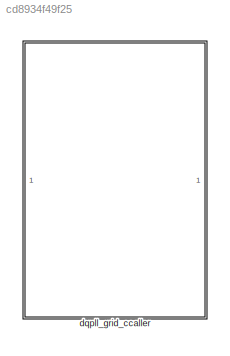
MODEL slx_cd8934f49f25
KIND library
CONFIG AbsTol = auto
CONFIG EnableMultiTasking = off
CONFIG FixedStep = auto
CONFIG MaxStep = auto
CONFIG MinStep = auto
CONFIG RelTol = 1e-3
CONFIG SampleTimeConstraint = Unconstrained
CONFIG SolverName = VariableStepAuto
CONFIG StartTime = 0.0
CONFIG StopTime = 10.0
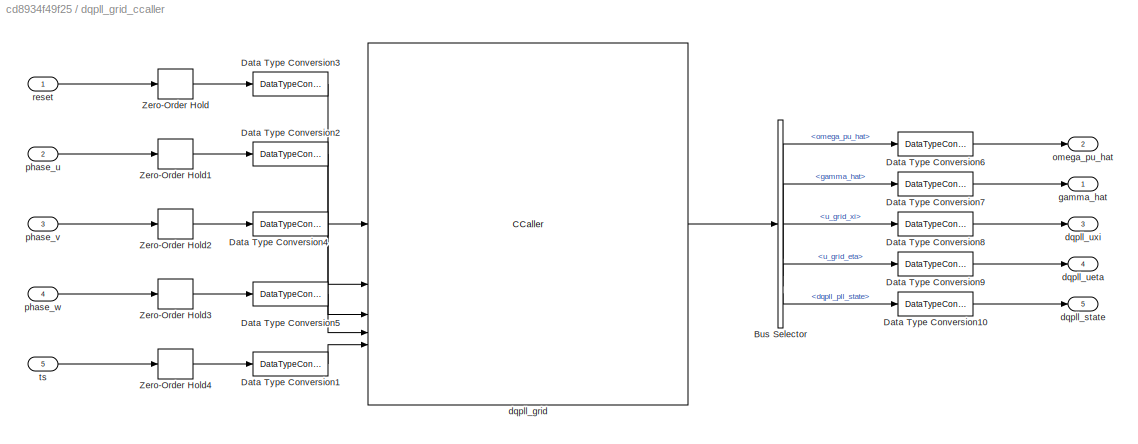
BLOCK [SubSystem] dqpll_grid_ccaller
BLOCK [BusSelector] dqpll_grid_ccaller/Bus Selector
  OutputSignals = omega_pu_hat,gamma_hat,u_grid_xi,u_grid_eta,dqpll_pll_state
BLOCK [DataTypeConversion] dqpll_grid_ccaller/Data Type Conversion1
  OutDataTypeStr = single
  RndMeth = Floor
  SaturateOnIntegerOverflow = off
BLOCK [DataTypeConversion] dqpll_grid_ccaller/Data Type Conversion10
  OutDataTypeStr = double
  RndMeth = Floor
  SaturateOnIntegerOverflow = off
BLOCK [DataTypeConversion] dqpll_grid_ccaller/Data Type Conversion2
  OutDataTypeStr = single
  RndMeth = Floor
  SaturateOnIntegerOverflow = off
BLOCK [DataTypeConversion] dqpll_grid_ccaller/Data Type Conversion3
  OutDataTypeStr = uint8
  RndMeth = Floor
  SaturateOnIntegerOverflow = off
BLOCK [DataTypeConversion] dqpll_grid_ccaller/Data Type Conversion4
  OutDataTypeStr = single
  RndMeth = Floor
  SaturateOnIntegerOverflow = off
BLOCK [DataTypeConversion] dqpll_grid_ccaller/Data Type Conversion5
  OutDataTypeStr = single
  RndMeth = Floor
  SaturateOnIntegerOverflow = off
BLOCK [DataTypeConversion] dqpll_grid_ccaller/Data Type Conversion6
  OutDataTypeStr = double
  RndMeth = Floor
  SaturateOnIntegerOverflow = off
BLOCK [DataTypeConversion] dqpll_grid_ccaller/Data Type Conversion7
  OutDataTypeStr = double
  RndMeth = Floor
  SaturateOnIntegerOverflow = off
BLOCK [DataTypeConversion] dqpll_grid_ccaller/Data Type Conversion8
  OutDataTypeStr = double
  RndMeth = Floor
  SaturateOnIntegerOverflow = off
BLOCK [DataTypeConversion] dqpll_grid_ccaller/Data Type Conversion9
  OutDataTypeStr = double
  RndMeth = Floor
  SaturateOnIntegerOverflow = off
BLOCK [ZeroOrderHold] dqpll_grid_ccaller/Zero-Order Hold
  SampleTime = -1
BLOCK [ZeroOrderHold] dqpll_grid_ccaller/Zero-Order Hold1
  SampleTime = -1
BLOCK [ZeroOrderHold] dqpll_grid_ccaller/Zero-Order Hold2
  SampleTime = -1
BLOCK [ZeroOrderHold] dqpll_grid_ccaller/Zero-Order Hold3
  SampleTime = -1
BLOCK [ZeroOrderHold] dqpll_grid_ccaller/Zero-Order Hold4
  SampleTime = -1
BLOCK [CCaller] dqpll_grid_ccaller/dqpll_grid
  FunctionName = dqpll_grid_process_simulink
  PortSpecificationStruct = %)30     .    N H   8    (     @         %    "     8    !     0         %  0 "0    $    _    07)G3F%M90  4&]R=$YA;64 4V-O<&4     26YD97@     5'EP90      4VEZ90      27-';&]B86P   X    P    !@    @    $          4    (     0    ,    !         !   P!O=70 #@   #     &    "     0         !0    @    !     P    $         $  # &]U=  .    .     8    (    !          %    "     $    &     0         0    !@...<+3272ch>
BLOCK [Outport] dqpll_grid_ccaller/dqpll_state
  Port = 5
  VectorParamsAs1DForOutWhenUnconnected = off
BLOCK [Outport] dqpll_grid_ccaller/dqpll_ueta
  Port = 4
  VectorParamsAs1DForOutWhenUnconnected = off
BLOCK [Outport] dqpll_grid_ccaller/dqpll_uxi
  Port = 3
  VectorParamsAs1DForOutWhenUnconnected = off
BLOCK [Outport] dqpll_grid_ccaller/gamma_hat
  VectorParamsAs1DForOutWhenUnconnected = off
BLOCK [Outport] dqpll_grid_ccaller/omega_pu_hat
  Port = 2
  VectorParamsAs1DForOutWhenUnconnected = off
BLOCK [Inport] dqpll_grid_ccaller/phase_u
  Port = 2
BLOCK [Inport] dqpll_grid_ccaller/phase_v
  Port = 3
BLOCK [Inport] dqpll_grid_ccaller/phase_w
  Port = 4
BLOCK [Inport] dqpll_grid_ccaller/reset
BLOCK [Inport] dqpll_grid_ccaller/ts
  Port = 5
LINE dqpll_grid_ccaller/Bus Selector:1 -> dqpll_grid_ccaller/Data Type Conversion6:1
LINE dqpll_grid_ccaller/Bus Selector:2 -> dqpll_grid_ccaller/Data Type Conversion7:1
LINE dqpll_grid_ccaller/Bus Selector:3 -> dqpll_grid_ccaller/Data Type Conversion8:1
LINE dqpll_grid_ccaller/Bus Selector:4 -> dqpll_grid_ccaller/Data Type Conversion9:1
LINE dqpll_grid_ccaller/Bus Selector:5 -> dqpll_grid_ccaller/Data Type Conversion10:1
LINE dqpll_grid_ccaller/Data Type Conversion10:1 -> dqpll_grid_ccaller/dqpll_state:1
LINE dqpll_grid_ccaller/Data Type Conversion1:1 -> dqpll_grid_ccaller/dqpll_grid:5
LINE dqpll_grid_ccaller/Data Type Conversion2:1 -> dqpll_grid_ccaller/dqpll_grid:2
LINE dqpll_grid_ccaller/Data Type Conversion3:1 -> dqpll_grid_ccaller/dqpll_grid:1
LINE dqpll_grid_ccaller/Data Type Conversion4:1 -> dqpll_grid_ccaller/dqpll_grid:3
LINE dqpll_grid_ccaller/Data Type Conversion5:1 -> dqpll_grid_ccaller/dqpll_grid:4
LINE dqpll_grid_ccaller/Data Type Conversion6:1 -> dqpll_grid_ccaller/omega_pu_hat:1
LINE dqpll_grid_ccaller/Data Type Conversion7:1 -> dqpll_grid_ccaller/gamma_hat:1
LINE dqpll_grid_ccaller/Data Type Conversion8:1 -> dqpll_grid_ccaller/dqpll_uxi:1
LINE dqpll_grid_ccaller/Data Type Conversion9:1 -> dqpll_grid_ccaller/dqpll_ueta:1
LINE dqpll_grid_ccaller/Zero-Order Hold1:1 -> dqpll_grid_ccaller/Data Type Conversion2:1
LINE dqpll_grid_ccaller/Zero-Order Hold2:1 -> dqpll_grid_ccaller/Data Type Conversion4:1
LINE dqpll_grid_ccaller/Zero-Order Hold3:1 -> dqpll_grid_ccaller/Data Type Conversion5:1
LINE dqpll_grid_ccaller/Zero-Order Hold4:1 -> dqpll_grid_ccaller/Data Type Conversion1:1
LINE dqpll_grid_ccaller/Zero-Order Hold:1 -> dqpll_grid_ccaller/Data Type Conversion3:1
LINE dqpll_grid_ccaller/dqpll_grid:1 -> dqpll_grid_ccaller/Bus Selector:1
LINE dqpll_grid_ccaller/phase_u:1 -> dqpll_grid_ccaller/Zero-Order Hold1:1
LINE dqpll_grid_ccaller/phase_v:1 -> dqpll_grid_ccaller/Zero-Order Hold2:1
LINE dqpll_grid_ccaller/phase_w:1 -> dqpll_grid_ccaller/Zero-Order Hold3:1
LINE dqpll_grid_ccaller/reset:1 -> dqpll_grid_ccaller/Zero-Order Hold:1
LINE dqpll_grid_ccaller/ts:1 -> dqpll_grid_ccaller/Zero-Order Hold4:1
